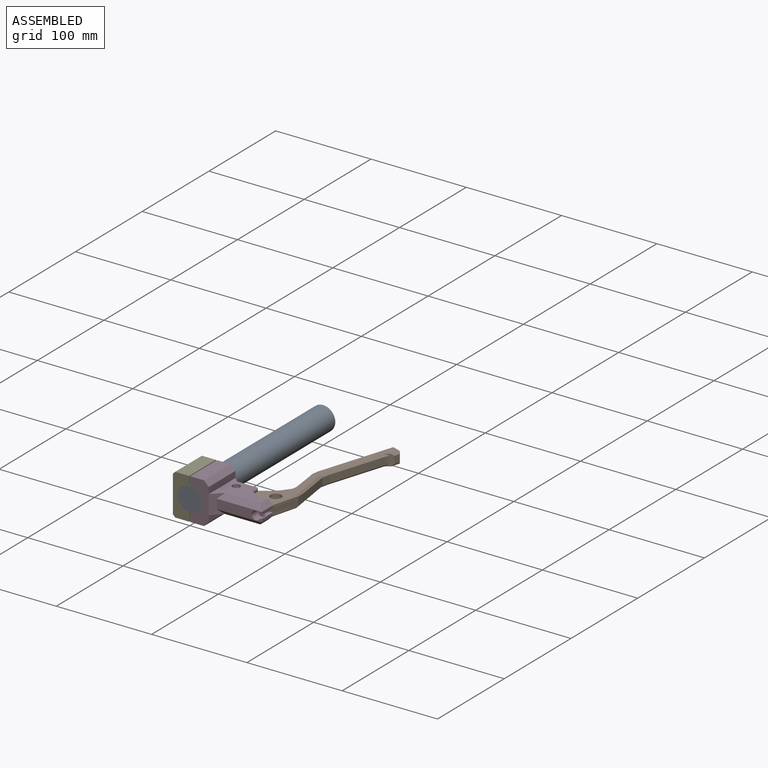
[diagram: assembled view]
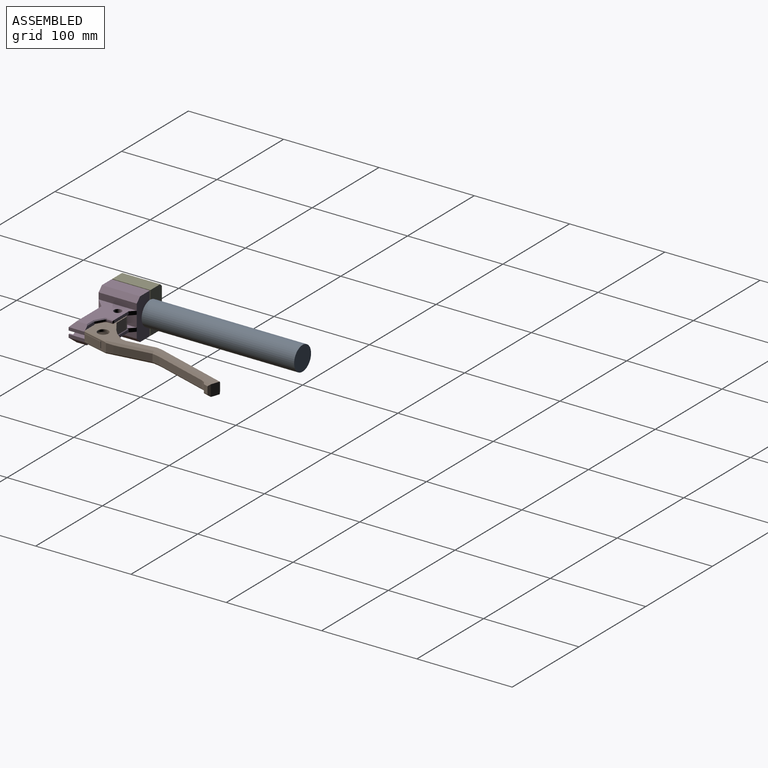
[diagram: assembled view, second angle]
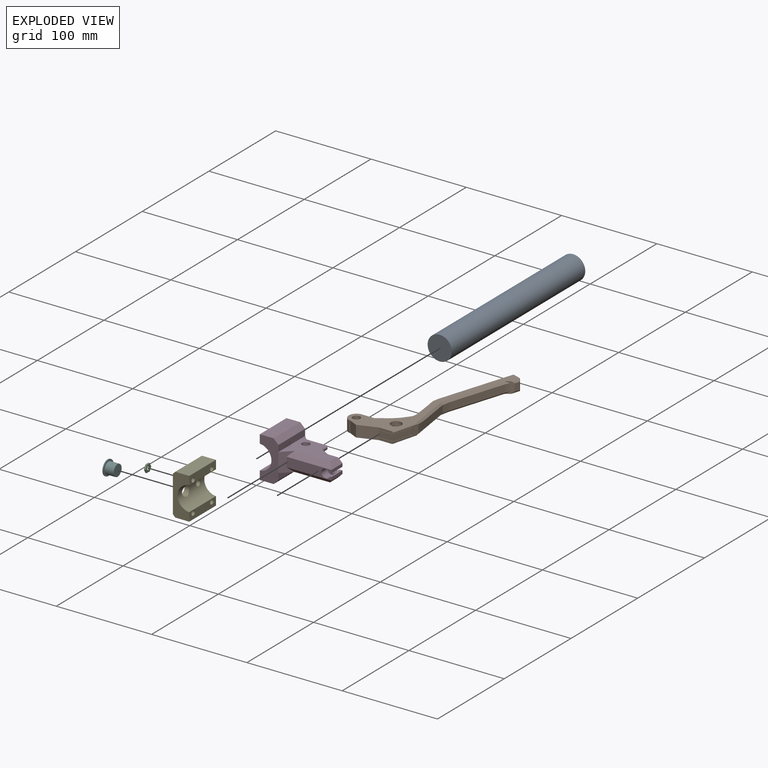
[diagram: exploded view]
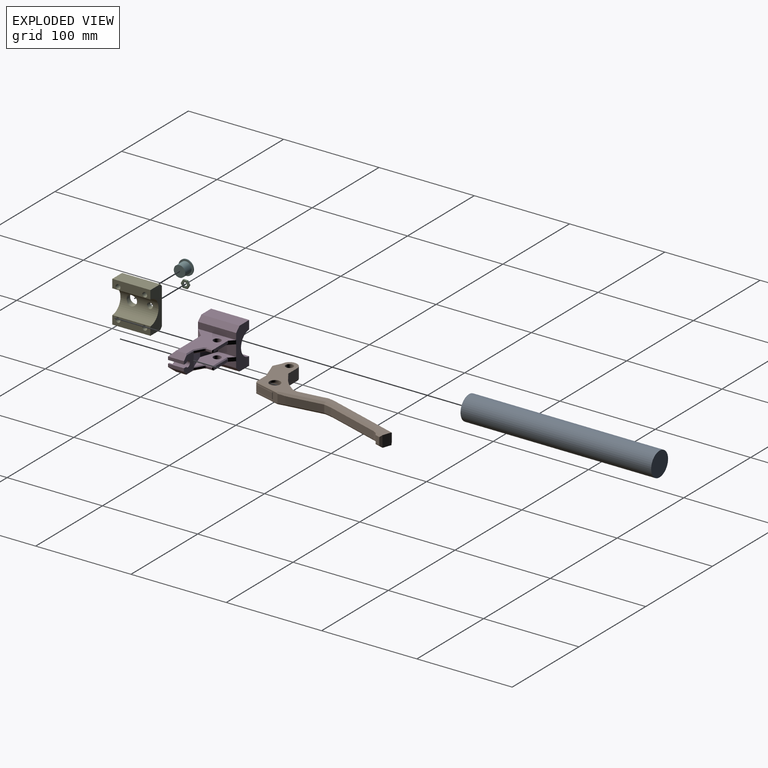
[diagram: exploded view, second angle]
ASSEMBLY  parts=6 mates=9
PART A: 3 faces, bbox 200x25.4x25.4 mm
  f0: cylinder r=12.7mm len=200mm, axis (-1,0,0), area 15959.3mm2, adj f1,f2
  f1: plane 25.4x25.4mm, normal (1,0,0), area 506.7mm2, adj f0
  f2: plane 25.4x25.4mm, normal (-1,0,0), area 506.7mm2, adj f0
PART B: 70 faces, bbox 161.5x78.6x12 mm
  f0: plane 14.82x2.45mm, normal (1,0,0), area 35.8mm2, adj f5,f7,f29,f58,f60
  f1: cylinder r=5.6mm len=11.2mm, axis (0,0,-1), area 86.2mm2, adj f29,f58
  f2: plane 12.7x12mm, normal (-1,0,0), area 152.4mm2, adj f3,f26,f28,f29
  f3: cylinder r=8.02mm len=16.02mm, axis (0,0,-1), area 302.3mm2, adj f2,f4,f28,f29
  f4: plane 12x8.71mm, normal (0.9,-0.44,0), area 116.4mm2, adj f3,f5,f28,f29
  f5: plane 19.33x12mm, normal (0.94,0.34,0), area 246.4mm2, adj f0,f4,f6,f28,f29,f54,f67
  f6: plane 14.82x2.45mm, normal (1,0,0), area 35.8mm2, adj f5,f7,f28,f59,f61
  f7: plane 27.48x10mm, normal (0.26,0.97,0), area 128.6mm2, adj f0,f6,f8,f44,f49,f57,f58,f59
  f8: plane 9.13x7.56mm, normal (-0.09,1,0), area 65.8mm2, adj f7,f9,f44,f49
  f9: plane 8.22x5.5mm, normal (-0.13,0.99,0), area 45mm2, adj f8,f10,f44,f49
  f10: plane 25.02x8mm, normal (-0.15,0.99,0), area 202.3mm2, adj f9,f11,f44,f49
  f11: plane 8x6.78mm, normal (-0.13,0.99,0), area 54.7mm2, adj f10,f12,f45,f50
  f12: plane 8.12x8mm, normal (0.2,0.98,0), area 66.3mm2, adj f11,f13,f46,f51
  f13: plane 57.68x18.3mm, normal (0.3,0.95,0), area 484.1mm2, adj f12,f14,f47,f52
  f14: plane 8x3.37mm, normal (0.48,0.88,0), area 30.8mm2, adj f13,f15,f48,f53
  f15: plane 12x7.31mm, normal (0.82,0.57,0), area 55.5mm2, adj f14,f16,f28,f29,f41,f43,f48,f53
  f16: plane 8x4.96mm, normal (0.3,0.95,0), area 41.5mm2, adj f15,f41,f42,f43
  f17: plane 12x8.91mm, normal (-0.94,0.33,0), area 113.2mm2, adj f28,f29,f35,f41,f42,f43
  f18: plane 75.93x24.09mm, normal (-0.3,-0.95,0), area 637.3mm2, adj f19,f34,f35,f36
  f19: plane 8x6.83mm, normal (-0.16,-0.99,0), area 55.4mm2, adj f18,f20,f33,f37
  f20: plane 8x4.99mm, normal (0.16,-0.99,0), area 40.4mm2, adj f19,f21,f32,f38
  f21: plane 25.08x8mm, normal (0.13,-0.99,0), area 202.3mm2, adj f20,f22,f31,f39
  f22: plane 8.51x8mm, normal (-0.17,-0.98,0), area 69.1mm2, adj f21,f23,f30,f40
  f23: plane 12x8.58mm, normal (-0.61,-0.8,0), area 86mm2, adj f22,f24,f28,f29,f30,f40
  f24: plane 12x5.79mm, normal (-0.74,-0.67,0), area 93.9mm2, adj f23,f26,f28,f29
  f25: cylinder r=4mm len=12mm, axis (0,0,-1), area 301.6mm2, adj f28,f29
  f26: plane 12.21x12mm, normal (-0.83,-0.56,0), area 176.5mm2, adj f2,f24,f28,f29
  f27: cylinder r=5.6mm len=11.2mm, axis (0,0,-1), area 86.2mm2, adj f28,f59
  f28: plane 161.48x77.31mm, normal (0,0,1), area 1892.2mm2, adj f2,f3,f4,f5,f6,f15,f17,f23
  f29: plane 161.48x77.31mm, normal (0,0,-1), area 1892.2mm2, adj f0,f1,f2,f3,f4,f5,f15,f17
  f30: plane 8.51x3.52mm, normal (-0.12,-0.7,0.71), area 19.4mm2, adj f22,f23,f28,f31
  f31: plane 25.41x5.23mm, normal (0.09,-0.7,0.71), area 72mm2, adj f21,f28,f30,f32
  f32: plane 4.99x2.78mm, normal (0.11,-0.7,0.71), area 13.9mm2, adj f20,f28,f31,f33
  f33: plane 6.83x3.09mm, normal (-0.12,-0.7,0.71), area 18.9mm2, adj f19,f28,f32,f34
  f34: plane 77.65x26.58mm, normal (-0.21,-0.67,0.71), area 227.9mm2, adj f18,f28,f33,f35
  f35: plane 12x2.56mm, normal (-0.89,-0.45,0), area 28.8mm2, adj f17,f18,f28,f29,f34,f36
  f36: plane 77.65x26.58mm, normal (-0.21,-0.67,-0.71), area 227.9mm2, adj f18,f29,f35,f37
  f37: plane 6.83x3.09mm, normal (-0.12,-0.7,-0.71), area 18.9mm2, adj f19,f29,f36,f38
  f38: plane 4.99x2.78mm, normal (0.11,-0.7,-0.71), area 13.9mm2, adj f20,f29,f37,f39
  f39: plane 25.41x5.23mm, normal (0.09,-0.7,-0.71), area 72mm2, adj f21,f29,f38,f40
  f40: plane 8.51x3.52mm, normal (-0.12,-0.7,-0.71), area 19.4mm2, adj f22,f23,f29,f39
  f41: plane 9.3x4.2mm, normal (0.21,0.68,-0.71), area 21.2mm2, adj f15,f16,f17,f29,f42
  f42: plane 11.87x2.48mm, normal (-0.45,0.89,0), area 27.6mm2, adj f16,f17,f41,f43
  f43: plane 9.3x4.2mm, normal (0.21,0.68,0.71), area 21.2mm2, adj f15,f16,f17,f28,f42
  f44: plane 39.14x7.02mm, normal (-0.1,0.7,-0.71), area 106.2mm2, adj f7,f8,f9,f10,f29,f45,f60
  f45: plane 7.13x2.95mm, normal (-0.09,0.7,-0.71), area 19.9mm2, adj f11,f29,f44,f46
  f46: plane 8.63x3.7mm, normal (0.14,0.69,-0.71), area 24.1mm2, adj f12,f29,f45,f47
  f47: plane 58.47x20.23mm, normal (0.21,0.67,-0.71), area 171.6mm2, adj f13,f29,f46,f48
  f48: plane 3.7x3.37mm, normal (0.34,0.62,-0.71), area 5.5mm2, adj f14,f15,f29,f47
  f49: plane 39.14x7.02mm, normal (-0.1,0.7,0.71), area 106.2mm2, adj f7,f8,f9,f10,f28,f50,f61
  f50: plane 7.13x2.95mm, normal (-0.09,0.7,0.71), area 19.9mm2, adj f11,f28,f49,f51
  f51: plane 8.63x3.7mm, normal (0.14,0.69,0.71), area 24.1mm2, adj f12,f28,f50,f52
  f52: plane 58.47x20.23mm, normal (0.21,0.67,0.71), area 171.6mm2, adj f13,f28,f51,f53
  f53: plane 3.7x3.37mm, normal (0.34,0.62,0.71), area 5.5mm2, adj f14,f15,f28,f52
  f54: plane 7.1x1.9mm, normal (-1,0,0), area 3.1mm2, adj f5,f56,f58,f59,f66,f68,f69
  f55: cylinder r=9.6mm len=12.74mm, axis (0,0,1), area 132.9mm2, adj f56,f57,f58,f59
  f56: plane 14.15x7.1mm, normal (0,1,0), area 100.5mm2, adj f54,f55,f58,f59
  f57: plane 9.58x7.1mm, normal (0.97,-0.26,0), area 70.4mm2, adj f7,f55,f58,f59
  f58: plane 24.2x22.32mm, normal (0,0,1), area 344.8mm2, adj f0,f1,f7,f54,f55,f56,f57
  f59: plane 24.2x22.32mm, normal (0,0,-1), area 344.8mm2, adj f6,f7,f27,f54,f55,f56,f57
  f60: plane 26.47x8.03mm, normal (0.18,0.68,-0.71), area 38.7mm2, adj f0,f7,f29,f44
  f61: plane 26.47x8.03mm, normal (0.18,0.68,0.71), area 38.7mm2, adj f6,f7,f28,f49
  f62: plane 20.65x6.8mm, normal (0.26,0.97,0), area 145.2mm2, adj f63,f67,f68,f69
  f63: plane 6.8x0.58mm, normal (-0.97,0.26,0), area 4.1mm2, adj f62,f64,f68,f69
  f64: plane 20.2x6.8mm, normal (-0.26,-0.97,0), area 142.1mm2, adj f63,f65,f68,f69
  f65: plane 15.87x6.8mm, normal (-1,0,0), area 107.9mm2, adj f64,f66,f68,f69
  f66: plane 6.8x0.6mm, normal (0,-1,0), area 4.1mm2, adj f54,f65,f68,f69
  f67: plane 14.82x6.8mm, normal (1,0,0), area 100.8mm2, adj f5,f62,f68,f69
  f68: plane 21.8x20.8mm, normal (0,0,1), area 22.3mm2, adj f54,f62,f63,f64,f65,f66,f67
  f69: plane 21.8x20.8mm, normal (0,0,-1), area 22.3mm2, adj f54,f62,f63,f64,f65,f66,f67
PART C: 15 faces, bbox 9.2x1.5x8 mm
  f0: plane 4.02x2.27mm, normal (0.87,0,0.49), area 6mm2, adj f1,f5,f8,f13
  f1: plane 4.62x1.3mm, normal (0.01,0,1), area 6mm2, adj f0,f2,f8,f14
  f2: plane 3.98x2.35mm, normal (-0.86,0,0.51), area 6mm2, adj f1,f3,f8,f12
  f3: plane 4.02x2.27mm, normal (-0.87,0,-0.49), area 6mm2, adj f2,f4,f8,f10
  f4: plane 4.62x1.3mm, normal (-0.01,0,-1), area 6mm2, adj f3,f5,f8,f9
  f5: plane 3.98x2.35mm, normal (0.86,0,-0.51), area 6mm2, adj f0,f4,f8,f11
  f6: cylinder r=2mm len=4mm, axis (0,1,0), area 18.8mm2, adj f7,f8
  f7: plane 8.78x7.64mm, normal (0,-1,0), area 37.5mm2, adj f6,f9,f10,f11,f12,f13,f14
  f8: plane 9.24x8.05mm, normal (0,1,0), area 42.9mm2, adj f0,f1,f2,f3,f4,f5,f6
  f9: plane 4.62x0.25mm, normal (-0.01,-0.71,-0.71), area 1.3mm2, adj f4,f7,f10,f11
  f10: plane 4.02x2.39mm, normal (-0.62,-0.71,-0.35), area 1.3mm2, adj f3,f7,f9,f12
  f11: plane 3.98x2.46mm, normal (0.61,-0.71,-0.36), area 1.3mm2, adj f5,f7,f9,f13
  f12: plane 3.98x2.46mm, normal (-0.61,-0.71,0.36), area 1.3mm2, adj f2,f7,f10,f14
  f13: plane 4.02x2.39mm, normal (0.62,-0.71,0.35), area 1.3mm2, adj f0,f7,f11,f14
  f14: plane 4.62x0.25mm, normal (0.01,-0.71,0.71), area 1.3mm2, adj f1,f7,f12,f13
PART D: 72 faces, bbox 40x71.6x43.4 mm
  f0: plane 18x14.82mm, normal (-1,0,0), area 210.5mm2, adj f1,f8,f29,f30,f34,f44,f46,f47
  f1: plane 16.66x3.25mm, normal (0,-1,0), area 54.1mm2, adj f0,f31,f46,f47
  f2: cylinder r=4.55mm len=9.1mm, axis (1,0,0), area 225mm2, adj f3,f31,f47,f49
  f3: plane 9.1x8.75mm, normal (1,0,0), area 30.3mm2, adj f2,f47,f48,f49
  f4: plane 40x6.7mm, normal (0,-1,0), area 268mm2, adj f15,f16,f25,f33
  f5: plane 19.03x12.1mm, normal (0,-1,0), area 230.3mm2, adj f16,f35,f36,f37
  f6: plane 21.68x2.95mm, normal (-1,0,0), area 64mm2, adj f32,f39,f50,f55
  f7: plane 6.2x1.95mm, normal (0,-1,0), area 12.1mm2, adj f63,f65,f67,f68
  f8: plane 9.14x5.28mm, normal (-0.87,-0.5,0), area 20.6mm2, adj f0,f64,f68,f70
  f9: plane 40x6.7mm, normal (0,-1,0), area 268mm2, adj f15,f16,f26,f32
  f10: plane 40x14.5mm, normal (0,0,1), area 580mm2, adj f14,f15,f16,f26
  f11: plane 40x14.5mm, normal (0,0,-1), area 580mm2, adj f12,f15,f16,f25
  f12: plane 40x9.01mm, normal (0,1,0), area 332.7mm2, adj f11,f13,f15,f16,f22,f24
  f13: cylinder r=12.7mm len=40mm, axis (-1,0,0), area 1555.9mm2, adj f12,f14,f15,f16
  f14: plane 40x9.01mm, normal (0,1,0), area 332.7mm2, adj f10,f13,f15,f16,f18,f20
  f15: plane 43.4x19.5mm, normal (1,0,0), area 580.6mm2, adj f4,f9,f10,f11,f12,f13,f14,f25
  f16: plane 43.4x19.5mm, normal (-1,0,0), area 580.6mm2, adj f4,f5,f9,f10,f11,f12,f13,f14
  f17: cone r=0mm half-angle=59deg, axis (0,1,0), area 16.2mm2, adj f18
  f18: cylinder r=2.1mm len=10mm, axis (0,1,0), area 131.9mm2, adj f14,f17
  f19: cone r=0mm half-angle=59deg, axis (0,1,0), area 16.2mm2, adj f20
  f20: cylinder r=2.1mm len=10mm, axis (0,1,0), area 131.9mm2, adj f14,f19
  f21: cone r=0mm half-angle=59deg, axis (0,1,0), area 16.2mm2, adj f22
  f22: cylinder r=2.1mm len=10mm, axis (0,1,0), area 131.9mm2, adj f12,f21
  f23: cone r=0mm half-angle=59deg, axis (0,1,0), area 16.2mm2, adj f24
  f24: cylinder r=2.1mm len=10mm, axis (0,1,0), area 131.9mm2, adj f12,f23
  f25: plane 40x5mm, normal (0,-0.71,-0.71), area 282.8mm2, adj f4,f11,f15,f16
  f26: plane 40x5mm, normal (0,-0.71,0.71), area 282.8mm2, adj f9,f10,f15,f16
  f27: plane 21.68x2.95mm, normal (-1,0,0), area 64mm2, adj f33,f38,f61,f65
  f28: plane 6.2x1.95mm, normal (0,-1,0), area 12.1mm2, adj f52,f55,f56,f57
  f29: plane 9.14x5.28mm, normal (-0.87,-0.5,0), area 20.6mm2, adj f0,f51,f56,f59
  f30: plane 16.66x3.25mm, normal (0,-1,0), area 54.1mm2, adj f0,f31,f44,f49
  f31: plane 47.13x10mm, normal (1,0,0), area 400.8mm2, adj f1,f2,f30,f40,f43,f45,f47,f49
  f32: plane 47.13x40mm, normal (0,0,1), area 928.9mm2, adj f6,f9,f39,f40,f41,f43,f44,f57
  f33: plane 47.13x40mm, normal (0,0,-1), area 928.9mm2, adj f4,f27,f38,f40,f42,f45,f46,f67
  f34: plane 19.33x14.1mm, normal (-0.94,0.34,0), area 249.8mm2, adj f0,f35,f36,f37,f51,f64
  f35: plane 17.99x12.1mm, normal (-0.94,-0.33,0), area 230.4mm2, adj f5,f34,f36,f37
  f36: plane 36.08x25.27mm, normal (0,0,1), area 454.1mm2, adj f5,f34,f35,f38,f42,f61,f63,f64
  f37: plane 36.08x25.27mm, normal (0,0,-1), area 454.1mm2, adj f5,f34,f35,f39,f41,f50,f51,f52
  f38: plane 6x6mm, normal (-0.71,-0.71,0), area 28.6mm2, adj f16,f27,f33,f36,f61
  f39: plane 6x6mm, normal (-0.71,-0.71,0), area 28.6mm2, adj f6,f16,f32,f37,f50
  f40: plane 20x10mm, normal (0.71,-0.71,0), area 176.8mm2, adj f15,f31,f32,f33,f43,f45
  f41: cylinder r=4mm len=8mm, axis (0,0,1), area 99.3mm2, adj f32,f37
  f42: cylinder r=4mm len=8mm, axis (0,0,1), area 99.3mm2, adj f33,f36
  f43: plane 47.13x5mm, normal (0.71,0,0.71), area 297.9mm2, adj f31,f32,f40,f44
  f44: plane 16.66x5mm, normal (0,-0.71,0.71), area 99.4mm2, adj f0,f30,f32,f43,f60
  f45: plane 47.13x5mm, normal (0.71,0,-0.71), area 297.9mm2, adj f31,f33,f40,f46
  f46: plane 16.66x5mm, normal (0,-0.71,-0.71), area 99.4mm2, adj f0,f1,f33,f45,f71
  f47: plane 16.66x3.5mm, normal (0,0,1), area 43mm2, adj f0,f1,f2,f3,f31,f48
  f48: cylinder r=3.05mm len=7.66mm, axis (1,0,0), area 118.2mm2, adj f0,f3,f47,f49
  f49: plane 16.66x3.5mm, normal (0,0,-1), area 43mm2, adj f0,f2,f3,f30,f31,f48
  f50: plane 21.68x1mm, normal (-0.71,0,-0.71), area 30mm2, adj f6,f37,f39,f53
  f51: plane 9.64x5.72mm, normal (-0.61,-0.35,-0.71), area 14.3mm2, adj f29,f34,f37,f54
  f52: plane 6.2x1mm, normal (0,-0.71,-0.71), area 8.8mm2, adj f28,f37,f53,f54
  f53: plane 1x1mm, normal (-0.58,-0.58,-0.58), area 0.9mm2, adj f50,f52,f55
  f54: plane 1.73x1.5mm, normal (-0.38,-0.65,-0.65), area 2mm2, adj f37,f51,f52,f56
  f55: plane 2.95x1mm, normal (-0.71,-0.71,0), area 3.5mm2, adj f6,f28,f53,f57
  f56: plane 1.95x0.87mm, normal (-0.5,-0.87,0), area 1.9mm2, adj f28,f29,f54,f58
  f57: plane 7.2x1mm, normal (0,-0.71,0.71), area 9.5mm2, adj f28,f32,f55,f58
  f58: plane 1.73x1.5mm, normal (-0.38,-0.65,0.65), area 2mm2, adj f32,f56,f57,f59
  f59: plane 9.64x6.28mm, normal (-0.61,-0.35,0.71), area 15.1mm2, adj f29,f32,f58,f60
  f60: plane 11.08x1mm, normal (-0.71,0,0.71), area 14.8mm2, adj f0,f32,f44,f59
  f61: plane 21.68x1mm, normal (-0.71,0,0.71), area 30mm2, adj f27,f36,f38,f62
  f62: plane 1x1mm, normal (-0.58,-0.58,0.58), area 0.9mm2, adj f61,f63,f65
  f63: plane 6.2x1mm, normal (0,-0.71,0.71), area 8.8mm2, adj f7,f36,f62,f66
  f64: plane 9.64x5.72mm, normal (-0.61,-0.35,0.71), area 14.3mm2, adj f8,f34,f36,f66
  f65: plane 2.95x1mm, normal (-0.71,-0.71,0), area 3.5mm2, adj f7,f27,f62,f67
  f66: plane 1.73x1.5mm, normal (-0.38,-0.65,0.65), area 2mm2, adj f36,f63,f64,f68
  f67: plane 7.2x1mm, normal (0,-0.71,-0.71), area 9.5mm2, adj f7,f33,f65,f69
  f68: plane 1.95x0.87mm, normal (-0.5,-0.87,0), area 1.9mm2, adj f7,f8,f66,f69
  f69: plane 1.73x1.5mm, normal (-0.38,-0.65,-0.65), area 2mm2, adj f33,f67,f68,f70
  f70: plane 9.64x6.28mm, normal (-0.61,-0.35,-0.71), area 15.1mm2, adj f8,f33,f69,f71
  f71: plane 11.08x1mm, normal (-0.71,0,-0.71), area 14.8mm2, adj f0,f33,f46,f70
PART E: 24 faces, bbox 40x17.2x43.4 mm
  f0: cylinder r=12.7mm len=40mm, axis (-1,0,0), area 1433.6mm2, adj f4,f5,f6,f7,f22,f23
  f1: plane 40x14.7mm, normal (0,0,1), area 588mm2, adj f5,f6,f7,f21
  f2: plane 40x38.4mm, normal (0,-1,0), area 1178.3mm2, adj f6,f7,f10,f13,f16,f19,f20,f21
  f3: plane 40x14.7mm, normal (0,0,-1), area 588mm2, adj f4,f6,f7,f20
  f4: plane 40x9.01mm, normal (0,1,0), area 321.1mm2, adj f0,f3,f6,f7,f14,f17
  f5: plane 40x9.01mm, normal (0,1,0), area 321.1mm2, adj f0,f1,f6,f7,f8,f11
  f6: plane 43.4x17.2mm, normal (1,0,0), area 499.6mm2, adj f0,f1,f2,f3,f4,f5,f20,f21
  f7: plane 43.4x17.2mm, normal (-1,0,0), area 499.6mm2, adj f0,f1,f2,f3,f4,f5,f20,f21
  f8: cylinder r=2.5mm len=12.2mm, axis (0,-1,0), area 191.6mm2, adj f5,f9
  f9: plane 9x9mm, normal (0,-1,0), area 44mm2, adj f8,f10
  f10: cylinder r=4.5mm len=9mm, axis (0,-1,0), area 137.3mm2, adj f2,f9,f21
  f11: cylinder r=2.5mm len=12.2mm, axis (0,-1,0), area 191.6mm2, adj f5,f12
  f12: plane 9x9mm, normal (0,-1,0), area 44mm2, adj f11,f13
  f13: cylinder r=4.5mm len=9mm, axis (0,-1,0), area 137.3mm2, adj f2,f12,f21
  f14: cylinder r=2.5mm len=12.2mm, axis (0,-1,0), area 191.6mm2, adj f4,f15
  f15: plane 9x9mm, normal (0,-1,0), area 44mm2, adj f14,f16
  f16: cylinder r=4.5mm len=9mm, axis (0,-1,0), area 136.7mm2, adj f2,f15,f20
  f17: cylinder r=2.5mm len=12.2mm, axis (0,-1,0), area 191.6mm2, adj f4,f18
  f18: plane 9x9mm, normal (0,-1,0), area 44mm2, adj f17,f19
  f19: cylinder r=4.5mm len=9mm, axis (0,-1,0), area 136.7mm2, adj f2,f18,f20
  f20: plane 40x2.5mm, normal (0,-0.71,-0.71), area 128.9mm2, adj f2,f3,f6,f7,f16,f19
  f21: plane 40x2.5mm, normal (0,-0.71,0.71), area 130.5mm2, adj f1,f2,f6,f7,f10,f13
  f22: cylinder r=3mm len=6mm, axis (0,-1,0), area 97.6mm2, adj f0,f2
  f23: cylinder r=5.4mm len=10.8mm, axis (0,-1,0), area 189.9mm2, adj f0,f2
PART F: 6 faces, bbox 15.7x15.7x11.1 mm
  f0: plane 8.1x8.1mm, normal (0,0,1), area 51.6mm2, adj f1
  f1: cone r=4.05mm half-angle=82.5deg, axis (0,0,-1), area 142.7mm2, adj f0,f2
  f2: cylinder r=7.84mm len=15.68mm, axis (0,0,1), area 49.3mm2, adj f1,f3
  f3: plane 15.68x15.68mm, normal (0,0,-1), area 80mm2, adj f2,f4
  f4: cylinder r=6mm len=12mm, axis (0,0,1), area 360.3mm2, adj f3,f5
  f5: plane 12x12mm, normal (0,0,-1), area 113.1mm2, adj f4
PLACE A rot(axis=(0.58,-0.58,-0.58),120deg) t=(0,200,0)mm
PLACE B rot(axis=(0,0,-1),90deg) t=(29.84,27,0)mm
PLACE C rot(axis=(-0.71,0.71,0),180deg) t=(-19.2,31,0)mm
PLACE D rot(axis=(0.71,-0.71,0),180deg) t=(0,40,0)mm
PLACE E rot(axis=(0,0,-1),90deg) t=(0,40,0)mm
PLACE F rot(axis=(0,-1,0),90deg) t=(-0.91,12,0)mm
MATE planar E.f6 <-> D.f15  axis (0,-1,0) through (-7.85,0,21.7)mm
MATE parallel E.f5 <-> D.f12  axis (1,0,0) through (-0.5,20,17.38)mm
MATE planar E.f2 <-> F.f1  axis (-1,0,0) through (-17.7,20.36,-0.01)mm
MATE revolute B.f25 <-> D.f41  axis (0,0,-1) through (29.84,27,-6)mm
MATE slider A.f0 <-> D.f13  axis (0,1,0) through (0,100,0)mm
MATE fastened E.f0 <-> A.f0  axis (0,-1,0) through (0,0,0)mm
MATE slider C.f6 <-> E.f22  axis (1,0,0) through (-17.7,31,0)mm
MATE parallel D.f0 <-> B.f0  axis (0,1,0) through (62.73,21.66,9)mm
MATE slider E.f23 <-> F.f1  axis (-1,0,0) through (-17.7,12,0)mm
